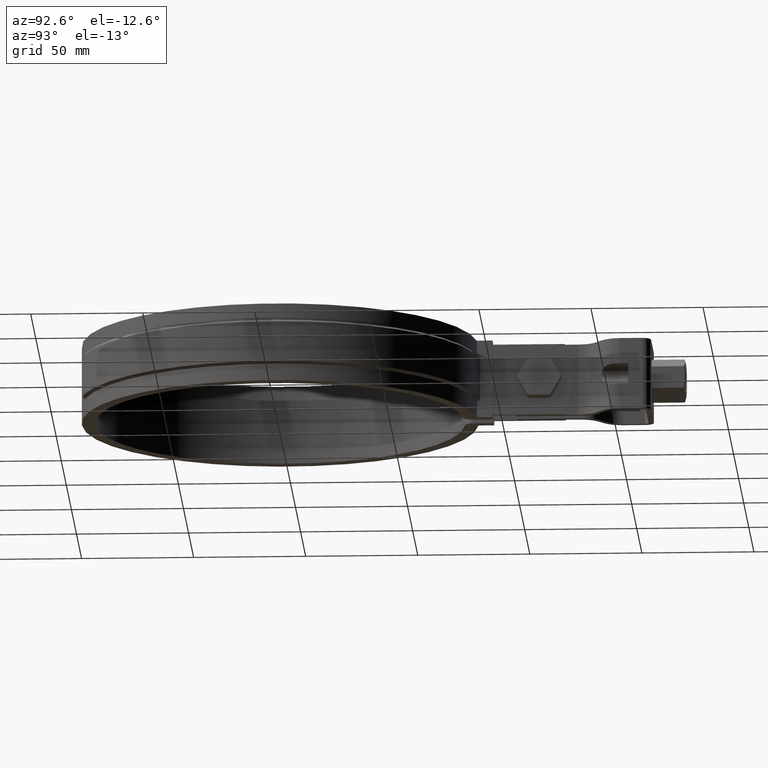
[diagram: clean part render]
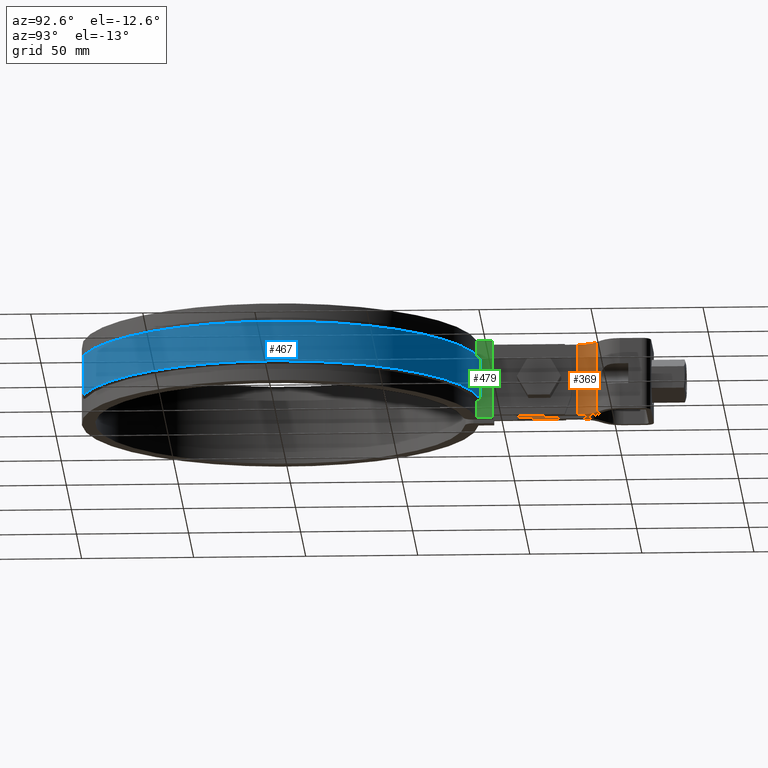
[diagram: same view with three faces highlighted in distinct colors, each labeled with its STEP entity id]
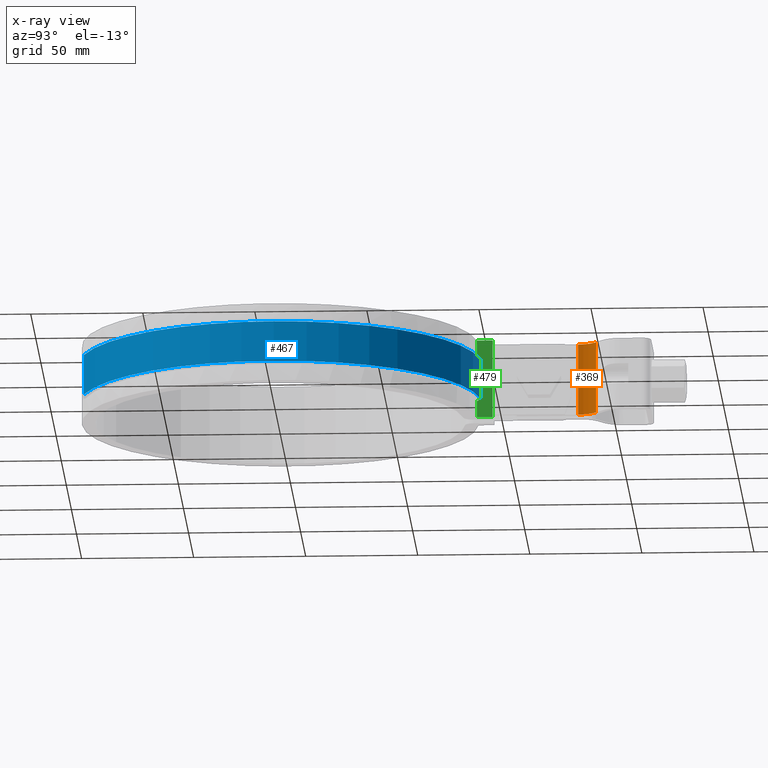
[diagram: x-ray of the same camera — body ghosted, the three highlighted faces saturated]
A machine part, auxiliary view with three faces highlighted in distinct colors.
The next image is the same camera in x-ray (body ghosted, the three faces saturated) — at least one of them is partly hidden behind the body in this view.
Their STEP definitions:

[orange] entity #369 — the highlighted cylindrical surface (edge-blend (fillet) strip) has radius 10 mm, axis along (0, -0, -1).
#369 = ADVANCED_FACE( '', ( #609 ), #610, .F. );
#609 = FACE_OUTER_BOUND( '', #1371, .T. );
#610 = CYLINDRICAL_SURFACE( '', #1372, 9.99999999999801 );
#1371 = EDGE_LOOP( '', ( #3259, #3260, #3261, #3262 ) );
#1372 = AXIS2_PLACEMENT_3D( '', #3263, #3264, #3265 );
#3259 = ORIENTED_EDGE( '', *, *, #5124, .F. );
#3260 = ORIENTED_EDGE( '', *, *, #5153, .F. );
#3261 = ORIENTED_EDGE( '', *, *, #5140, .T. );
#3262 = ORIENTED_EDGE( '', *, *, #5158, .T. );
#3263 = CARTESIAN_POINT( '', ( 15.0000000000000, 133.144549009249, -31.9999999999894 ) );
#3264 = DIRECTION( '', ( 9.11521279052786E-016, -1.75137682134619E-013, -1.00000000000000 ) );
#3265 = DIRECTION( '', ( -3.03451482752472E-016, 1.00000000000000, -1.75137682134619E-013 ) );
#5124 = EDGE_CURVE( '', #5706, #5708, #5709, .T. );
#5140 = EDGE_CURVE( '', #5737, #5735, #5738, .T. );
#5153 = EDGE_CURVE( '', #5737, #5706, #5757, .T. );
#5158 = EDGE_CURVE( '', #5735, #5708, #5763, .T. );
#5706 = VERTEX_POINT( '', #7707 );
#5708 = VERTEX_POINT( '', #7710 );
#5709 = CIRCLE( '', #7711, 9.99999999999996 );
#5735 = VERTEX_POINT( '', #7746 );
#5737 = VERTEX_POINT( '', #7749 );
#5738 = CIRCLE( '', #7750, 9.99999999999996 );
#5757 = LINE( '', #7777, #7778 );
#5763 = LINE( '', #7784, #7785 );
#7707 = CARTESIAN_POINT( '', ( 4.99999999999998, 133.144549009254, 4.37150315946097E-012 ) );
#7710 = CARTESIAN_POINT( '', ( 9.26423563648950, 141.336069452142, 2.93862156830432E-012 ) );
#7711 = AXIS2_PLACEMENT_3D( '', #9710, #9711, #9712 );
#7746 = CARTESIAN_POINT( '', ( 9.26423563648953, 141.336069452137, -31.9999999999908 ) );
#7749 = CARTESIAN_POINT( '', ( 5.00000000000000, 133.144549009249, -31.9999999999894 ) );
#7750 = AXIS2_PLACEMENT_3D( '', #9738, #9739, #9740 );
#7777 = CARTESIAN_POINT( '', ( 5.00000000000000, 133.144549009249, -31.9999999999894 ) );
#7778 = VECTOR( '', #9761, 999.999999999938 );
#7784 = CARTESIAN_POINT( '', ( 9.26423563648953, 141.336069452137, -31.9999999999908 ) );
#7785 = VECTOR( '', #9774, 999.999999999938 );
#9710 = CARTESIAN_POINT( '', ( 14.9999999999999, 133.144549009254, 4.38191150031683E-012 ) );
#9711 = DIRECTION( '', ( 9.11521279052786E-016, -1.75137682134619E-013, -1.00000000000000 ) );
#9712 = DIRECTION( '', ( -1.00000000000000, -3.03451482752632E-016, -9.11521279052733E-016 ) );
#9738 = CARTESIAN_POINT( '', ( 15.0000000000000, 133.144549009249, -31.9999999999894 ) );
#9739 = DIRECTION( '', ( 9.11521279052786E-016, -1.75137682134619E-013, -1.00000000000000 ) );
#9740 = DIRECTION( '', ( -1.00000000000000, -3.03451482752632E-016, -9.11521279052733E-016 ) );
#9761 = DIRECTION( '', ( -9.11521279052786E-016, 1.75137682134619E-013, 1.00000000000000 ) );
#9774 = DIRECTION( '', ( -9.11521279052786E-016, 1.75137682134619E-013, 1.00000000000000 ) );

[blue] entity #467 — the highlighted cylindrical surface (partial cylindrical patch) has radius 90 mm, axis along (0, 0, -1).
#467 = ADVANCED_FACE( '', ( #832 ), #833, .T. );
#832 = FACE_OUTER_BOUND( '', #1967, .T. );
#833 = CYLINDRICAL_SURFACE( '', #1968, 90.0000000000000 );
#1967 = EDGE_LOOP( '', ( #4747, #4748, #4749, #4750 ) );
#1968 = AXIS2_PLACEMENT_3D( '', #4751, #4752, #4753 );
#4747 = ORIENTED_EDGE( '', *, *, #5397, .T. );
#4748 = ORIENTED_EDGE( '', *, *, #5398, .T. );
#4749 = ORIENTED_EDGE( '', *, *, #5399, .F. );
#4750 = ORIENTED_EDGE( '', *, *, #5400, .T. );
#4751 = CARTESIAN_POINT( '', ( 1.38777878078145E-014, -4.16333634234434E-014, -26.0000000000000 ) );
#4752 = DIRECTION( '', ( 0.000000000000000, 0.000000000000000, -1.00000000000000 ) );
#4753 = DIRECTION( '', ( 0.280000000000000, -0.960000000000000, 0.000000000000000 ) );
#5397 = EDGE_CURVE( '', #6169, #6170, #6171, .T. );
#5398 = EDGE_CURVE( '', #6170, #6172, #6173, .F. );
#5399 = EDGE_CURVE( '', #6174, #6172, #6175, .T. );
#5400 = EDGE_CURVE( '', #6174, #6169, #6176, .T. );
#6169 = VERTEX_POINT( '', #9418 );
#6170 = VERTEX_POINT( '', #9419 );
#6171 = LINE( '', #9420, #9421 );
#6172 = VERTEX_POINT( '', #9422 );
#6173 = CIRCLE( '', #9423, 90.0000000000000 );
#6174 = VERTEX_POINT( '', #9424 );
#6175 = LINE( '', #9425, #9426 );
#6176 = CIRCLE( '', #9427, 90.0000000000000 );
#9418 = CARTESIAN_POINT( '', ( 8.39999999999997, 89.6071425724534, -25.0000000000000 ) );
#9419 = CARTESIAN_POINT( '', ( 8.39999999999997, 89.6071425724534, -7.00000000000001 ) );
#9420 = CARTESIAN_POINT( '', ( 8.39999999999997, 89.6071425724534, -26.0000000000000 ) );
#9421 = VECTOR( '', #10107, 1000.00000000000 );
#9422 = CARTESIAN_POINT( '', ( 25.2000000000000, -86.4000000000000, -7.00000000000001 ) );
#9423 = AXIS2_PLACEMENT_3D( '', #10108, #10109, #10110 );
#9424 = CARTESIAN_POINT( '', ( 25.2000000000000, -86.4000000000000, -25.0000000000000 ) );
#9425 = CARTESIAN_POINT( '', ( 25.2000000000000, -86.4000000000000, -26.0000000000000 ) );
#9426 = VECTOR( '', #10111, 1000.00000000000 );
#9427 = AXIS2_PLACEMENT_3D( '', #10112, #10113, #10114 );
#10107 = DIRECTION( '', ( 0.000000000000000, 0.000000000000000, 1.00000000000000 ) );
#10108 = CARTESIAN_POINT( '', ( 1.38777878078145E-014, -4.16333634234434E-014, -7.00000000000000 ) );
#10109 = DIRECTION( '', ( 0.000000000000000, 0.000000000000000, 1.00000000000000 ) );
#10110 = DIRECTION( '', ( 1.00000000000000, 0.000000000000000, 0.000000000000000 ) );
#10111 = DIRECTION( '', ( 0.000000000000000, 0.000000000000000, 1.00000000000000 ) );
#10112 = CARTESIAN_POINT( '', ( 1.38777878078145E-014, -4.16333634234434E-014, -25.0000000000000 ) );
#10113 = DIRECTION( '', ( 0.000000000000000, 0.000000000000000, 1.00000000000000 ) );
#10114 = DIRECTION( '', ( 1.00000000000000, 0.000000000000000, 0.000000000000000 ) );

[green] entity #479 — the highlighted planar face has unit normal (1, -0, 0).
#479 = ADVANCED_FACE( '', ( #856 ), #857, .T. );
#856 = FACE_OUTER_BOUND( '', #1991, .T. );
#857 = PLANE( '', #1992 );
#1991 = EDGE_LOOP( '', ( #4845, #4846, #4847, #4848, #4849, #4850, #4851, #4852, #4853, #4854 ) );
#1992 = AXIS2_PLACEMENT_3D( '', #4855, #4856, #4857 );
#4845 = ORIENTED_EDGE( '', *, *, #5397, .F. );
#4846 = ORIENTED_EDGE( '', *, *, #5417, .T. );
#4847 = ORIENTED_EDGE( '', *, *, #5392, .T. );
#4848 = ORIENTED_EDGE( '', *, *, #5346, .F. );
#4849 = ORIENTED_EDGE( '', *, *, #5414, .T. );
#4850 = ORIENTED_EDGE( '', *, *, #5341, .T. );
#4851 = ORIENTED_EDGE( '', *, *, #5407, .F. );
#4852 = ORIENTED_EDGE( '', *, *, #5352, .F. );
#4853 = ORIENTED_EDGE( '', *, *, #5389, .F. );
#4854 = ORIENTED_EDGE( '', *, *, #5418, .T. );
#4855 = CARTESIAN_POINT( '', ( 8.40000000000000, 88.1004540283420, -33.5000000000000 ) );
#4856 = DIRECTION( '', ( 1.00000000000000, -6.42490176287706E-017, 0.000000000000000 ) );
#4857 = DIRECTION( '', ( -6.42490176287706E-017, -1.00000000000000, 0.000000000000000 ) );
#5341 = EDGE_CURVE( '', #6073, #6070, #6074, .T. );
#5346 = EDGE_CURVE( '', #6080, #6081, #6082, .T. );
#5352 = EDGE_CURVE( '', #6091, #6093, #6094, .T. );
#5389 = EDGE_CURVE( '', #6154, #6091, #6156, .T. );
#5392 = EDGE_CURVE( '', #6161, #6081, #6162, .T. );
#5397 = EDGE_CURVE( '', #6169, #6170, #6171, .T. );
#5407 = EDGE_CURVE( '', #6093, #6070, #6183, .T. );
#5414 = EDGE_CURVE( '', #6080, #6073, #6194, .T. );
#5417 = EDGE_CURVE( '', #6169, #6161, #6197, .T. );
#5418 = EDGE_CURVE( '', #6154, #6170, #6198, .T. );
#6070 = VERTEX_POINT( '', #9280 );
#6073 = VERTEX_POINT( '', #9284 );
#6074 = LINE( '', #9285, #9286 );
#6080 = VERTEX_POINT( '', #9296 );
#6081 = VERTEX_POINT( '', #9297 );
#6082 = LINE( '', #9298, #9299 );
#6091 = VERTEX_POINT( '', #9309 );
#6093 = VERTEX_POINT( '', #9311 );
#6094 = LINE( '', #9312, #9313 );
#6154 = VERTEX_POINT( '', #9397 );
#6156 = LINE( '', #9399, #9400 );
#6161 = VERTEX_POINT( '', #9406 );
#6162 = LINE( '', #9407, #9408 );
#6169 = VERTEX_POINT( '', #9418 );
#6170 = VERTEX_POINT( '', #9419 );
#6171 = LINE( '', #9420, #9421 );
#6183 = LINE( '', #9438, #9439 );
#6194 = LINE( '', #9450, #9451 );
#6197 = B_SPLINE_CURVE_WITH_KNOTS( '', 3, ( #9456, #9457, #9458, #9459 ), .UNSPECIFIED., .F., .F., ( 4, 4 ), ( 3.46944695195361E-017, 0.00141735220717068 ), .UNSPECIFIED. );
#6198 = B_SPLINE_CURVE_WITH_KNOTS( '', 3, ( #9460, #9461, #9462, #9463 ), .UNSPECIFIED., .F., .F., ( 4, 4 ), ( 0.000000000000000, 0.00141735220717066 ), .UNSPECIFIED. );
#9280 = CARTESIAN_POINT( '', ( 8.40000000000000, 95.1000000000000, 1.50000000000000 ) );
#9284 = CARTESIAN_POINT( '', ( 8.40000000000000, 95.1000000000000, -33.5000000000000 ) );
#9285 = CARTESIAN_POINT( '', ( 8.40000000000000, 95.1000000000000, -33.5000000000000 ) );
#9286 = VECTOR( '', #10009, 1000.00000000000 );
#9296 = CARTESIAN_POINT( '', ( 8.40000000000001, 88.1004540283420, -33.5000000000000 ) );
#9297 = CARTESIAN_POINT( '', ( 8.40000000000001, 88.1004540283420, -26.0000000000000 ) );
#9298 = CARTESIAN_POINT( '', ( 8.40000000000001, 88.1004540283420, -33.5000000000000 ) );
#9299 = VECTOR( '', #10014, 1000.00000000000 );
#9309 = CARTESIAN_POINT( '', ( 8.40000000000003, 88.1004540283419, -6.00000000000000 ) );
#9311 = CARTESIAN_POINT( '', ( 8.40000000000001, 88.1004540283420, 1.50000000000000 ) );
#9312 = CARTESIAN_POINT( '', ( 8.40000000000001, 88.1004540283420, -33.5000000000000 ) );
#9313 = VECTOR( '', #10028, 1000.00000000000 );
#9397 = CARTESIAN_POINT( '', ( 8.40000000000002, 88.6027087622043, -6.00000000000000 ) );
#9399 = CARTESIAN_POINT( '', ( 8.40000000000002, 89.6071425724534, -6.00000000000000 ) );
#9400 = VECTOR( '', #10095, 1000.00000000000 );
#9406 = CARTESIAN_POINT( '', ( 8.40000000000002, 88.6027087622043, -26.0000000000000 ) );
#9407 = CARTESIAN_POINT( '', ( 8.40000000000002, 89.6071425724534, -26.0000000000000 ) );
#9408 = VECTOR( '', #10100, 1000.00000000000 );
#9418 = CARTESIAN_POINT( '', ( 8.39999999999997, 89.6071425724534, -25.0000000000000 ) );
#9419 = CARTESIAN_POINT( '', ( 8.39999999999997, 89.6071425724534, -7.00000000000001 ) );
#9420 = CARTESIAN_POINT( '', ( 8.39999999999997, 89.6071425724534, -26.0000000000000 ) );
#9421 = VECTOR( '', #10107, 1000.00000000000 );
#9438 = CARTESIAN_POINT( '', ( 8.40000000000000, 88.1004540283420, 1.50000000000000 ) );
#9439 = VECTOR( '', #10125, 1000.00000000000 );
#9450 = CARTESIAN_POINT( '', ( 8.40000000000000, 88.1004540283420, -33.5000000000000 ) );
#9451 = VECTOR( '', #10144, 1000.00000000000 );
#9456 = CARTESIAN_POINT( '', ( 8.39999999999997, 89.6071425724534, -25.0000000000000 ) );
#9457 = CARTESIAN_POINT( '', ( 8.39999999999997, 89.2723395311518, -25.3333415983956 ) );
#9458 = CARTESIAN_POINT( '', ( 8.40000000000000, 88.9375283537308, -25.6666750252145 ) );
#9459 = CARTESIAN_POINT( '', ( 8.40000000000000, 88.6027087622043, -26.0000000000000 ) );
#9460 = CARTESIAN_POINT( '', ( 8.40000000000002, 88.6027087622043, -6.00000000000000 ) );
#9461 = CARTESIAN_POINT( '', ( 8.40000000000002, 88.9375283537308, -6.33332497478547 ) );
#9462 = CARTESIAN_POINT( '', ( 8.40000000000000, 89.2723395311518, -6.66665840160440 ) );
#9463 = CARTESIAN_POINT( '', ( 8.40000000000000, 89.6071425724534, -7.00000000000000 ) );
#10009 = DIRECTION( '', ( 0.000000000000000, 0.000000000000000, 1.00000000000000 ) );
#10014 = DIRECTION( '', ( 0.000000000000000, 0.000000000000000, 1.00000000000000 ) );
#10028 = DIRECTION( '', ( 0.000000000000000, 0.000000000000000, 1.00000000000000 ) );
#10095 = DIRECTION( '', ( -2.77555756156289E-016, -1.00000000000000, 0.000000000000000 ) );
#10100 = DIRECTION( '', ( -2.77555756156289E-016, -1.00000000000000, 0.000000000000000 ) );
#10107 = DIRECTION( '', ( 0.000000000000000, 0.000000000000000, 1.00000000000000 ) );
#10125 = DIRECTION( '', ( 6.42490176287706E-017, 1.00000000000000, 0.000000000000000 ) );
#10144 = DIRECTION( '', ( 6.42490176287706E-017, 1.00000000000000, 0.000000000000000 ) );